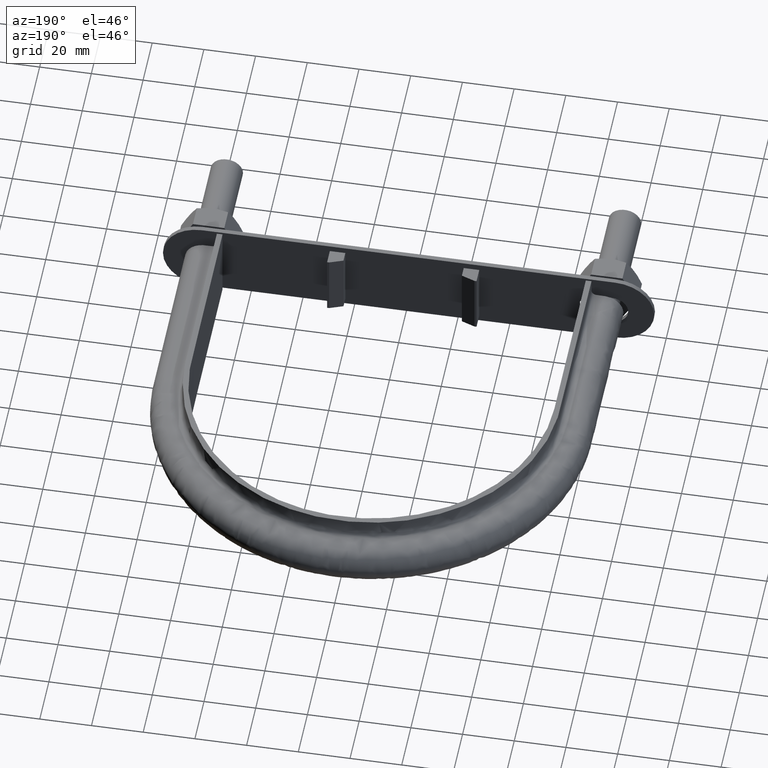
[diagram: clean part render]
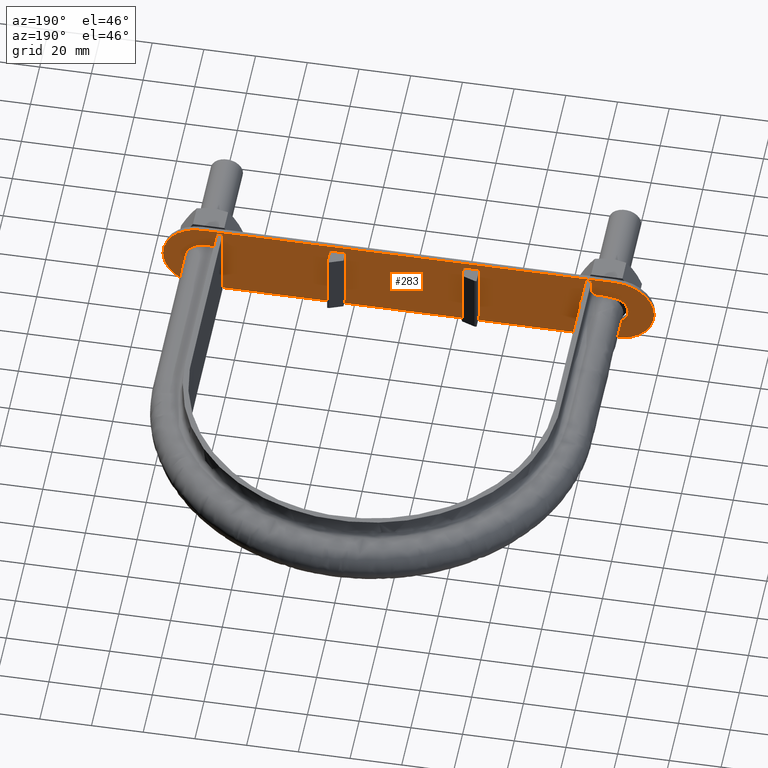
[diagram: same view with one face highlighted and labeled with its STEP entity id]
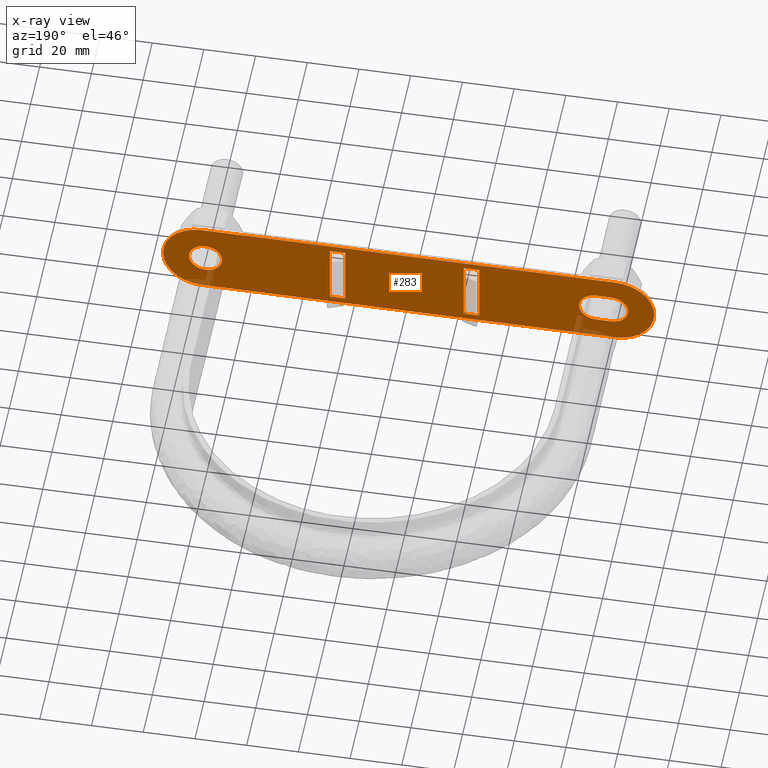
[diagram: x-ray of the same camera — body ghosted, the highlighted face saturated]
A machine part, auxiliary view. The second image highlights one B-rep face of the part: STEP entity #283.
The next image is the same camera in x-ray: the body ghosted, the highlighted face saturated — about 2% of this face is hidden behind the body in this view.
In plain terms, the highlighted planar face has unit normal (0, 1, 0).
Its self-contained STEP definition (entity closure, byte-faithful):
#283 = ADVANCED_FACE( '', ( #387, #388, #389, #390, #391 ), #392, .T. );
#387 = FACE_BOUND( '', #1420, .T. );
#388 = FACE_OUTER_BOUND( '', #1421, .T. );
#389 = FACE_BOUND( '', #1422, .T. );
#390 = FACE_BOUND( '', #1423, .T. );
#391 = FACE_BOUND( '', #1424, .T. );
#392 = PLANE( '', #1425 );
#1420 = EDGE_LOOP( '', ( #1690, #1691, #1692, #1693 ) );
#1421 = EDGE_LOOP( '', ( #1694, #1695, #1696, #1697, #1698, #1699 ) );
#1422 = EDGE_LOOP( '', ( #1700 ) );
#1423 = EDGE_LOOP( '', ( #1701, #1702, #1703, #1704 ) );
#1424 = EDGE_LOOP( '', ( #1705, #1706, #1707, #1708 ) );
#1425 = AXIS2_PLACEMENT_3D( '', #1709, #1710, #1711 );
#1690 = ORIENTED_EDGE( '', *, *, #2177, .T. );
#1691 = ORIENTED_EDGE( '', *, *, #2178, .T. );
#1692 = ORIENTED_EDGE( '', *, *, #2179, .F. );
#1693 = ORIENTED_EDGE( '', *, *, #2180, .F. );
#1694 = ORIENTED_EDGE( '', *, *, #2181, .T. );
#1695 = ORIENTED_EDGE( '', *, *, #2182, .T. );
#1696 = ORIENTED_EDGE( '', *, *, #2183, .T. );
#1697 = ORIENTED_EDGE( '', *, *, #2184, .T. );
#1698 = ORIENTED_EDGE( '', *, *, #2185, .T. );
#1699 = ORIENTED_EDGE( '', *, *, #2186, .T. );
#1700 = ORIENTED_EDGE( '', *, *, #2187, .F. );
#1701 = ORIENTED_EDGE( '', *, *, #2188, .F. );
#1702 = ORIENTED_EDGE( '', *, *, #2189, .F. );
#1703 = ORIENTED_EDGE( '', *, *, #2190, .F. );
#1704 = ORIENTED_EDGE( '', *, *, #2191, .F. );
#1705 = ORIENTED_EDGE( '', *, *, #2192, .F. );
#1706 = ORIENTED_EDGE( '', *, *, #2193, .T. );
#1707 = ORIENTED_EDGE( '', *, *, #2194, .T. );
#1708 = ORIENTED_EDGE( '', *, *, #2195, .F. );
#1709 = CARTESIAN_POINT( '', ( -81.5500000000000, 46.9100000002304, 1.37038635539817E-007 ) );
#1710 = DIRECTION( '', ( 2.82548111464310E-012, 1.00000000000000, 1.04599653137929E-013 ) );
#1711 = DIRECTION( '', ( 1.68042474379972E-009, -1.04599657885938E-013, 1.00000000000000 ) );
#2177 = EDGE_CURVE( '', #2379, #2380, #2381, .T. );
#2178 = EDGE_CURVE( '', #2380, #2382, #2383, .T. );
#2179 = EDGE_CURVE( '', #2384, #2382, #2385, .T. );
#2180 = EDGE_CURVE( '', #2379, #2384, #2386, .T. );
#2181 = EDGE_CURVE( '', #2387, #2388, #2389, .T. );
#2182 = EDGE_CURVE( '', #2388, #2390, #2391, .T. );
#2183 = EDGE_CURVE( '', #2390, #2392, #2393, .T. );
#2184 = EDGE_CURVE( '', #2392, #2394, #2395, .T. );
#2185 = EDGE_CURVE( '', #2394, #2396, #2397, .T. );
#2186 = EDGE_CURVE( '', #2396, #2387, #2398, .T. );
#2187 = EDGE_CURVE( '', #2399, #2399, #2400, .T. );
#2188 = EDGE_CURVE( '', #2401, #2402, #2403, .F. );
#2189 = EDGE_CURVE( '', #2404, #2401, #2405, .T. );
#2190 = EDGE_CURVE( '', #2406, #2404, #2407, .F. );
#2191 = EDGE_CURVE( '', #2402, #2406, #2408, .T. );
#2192 = EDGE_CURVE( '', #2409, #2410, #2411, .T. );
#2193 = EDGE_CURVE( '', #2409, #2412, #2413, .T. );
#2194 = EDGE_CURVE( '', #2412, #2414, #2415, .T. );
#2195 = EDGE_CURVE( '', #2410, #2414, #2416, .T. );
#2379 = VERTEX_POINT( '', #2869 );
#2380 = VERTEX_POINT( '', #2870 );
#2381 = LINE( '', #2871, #2872 );
#2382 = VERTEX_POINT( '', #2873 );
#2383 = LINE( '', #2874, #2875 );
#2384 = VERTEX_POINT( '', #2876 );
#2385 = LINE( '', #2877, #2878 );
#2386 = LINE( '', #2879, #2880 );
#2387 = VERTEX_POINT( '', #2881 );
#2388 = VERTEX_POINT( '', #2882 );
#2389 = CIRCLE( '', #2883, 15.0000000000000 );
#2390 = VERTEX_POINT( '', #2884 );
#2391 = LINE( '', #2885, #2886 );
#2392 = VERTEX_POINT( '', #2887 );
#2393 = CIRCLE( '', #2888, 15.0000000000000 );
#2394 = VERTEX_POINT( '', #2889 );
#2395 = CIRCLE( '', #2890, 15.0000000000000 );
#2396 = VERTEX_POINT( '', #2891 );
#2397 = LINE( '', #2892, #2893 );
#2398 = CIRCLE( '', #2894, 15.0000000000000 );
#2399 = VERTEX_POINT( '', #2895 );
#2400 = CIRCLE( '', #2896, 6.40000000000000 );
#2401 = VERTEX_POINT( '', #2897 );
#2402 = VERTEX_POINT( '', #2898 );
#2403 = CIRCLE( '', #2899, 6.50000000000000 );
#2404 = VERTEX_POINT( '', #2900 );
#2405 = LINE( '', #2901, #2902 );
#2406 = VERTEX_POINT( '', #2903 );
#2407 = CIRCLE( '', #2904, 6.50000000000000 );
#2408 = LINE( '', #2905, #2906 );
#2409 = VERTEX_POINT( '', #2907 );
#2410 = VERTEX_POINT( '', #2908 );
#2411 = LINE( '', #2909, #2910 );
#2412 = VERTEX_POINT( '', #2911 );
#2413 = LINE( '', #2912, #2913 );
#2414 = VERTEX_POINT( '', #2914 );
#2415 = LINE( '', #2915, #2916 );
#2416 = LINE( '', #2917, #2918 );
#2869 = CARTESIAN_POINT( '', ( -28.9000000210053, 46.9100000000830, -12.4999999514357 ) );
#2870 = CARTESIAN_POINT( '', ( -22.9000000210053, 46.9100000000660, -12.4999999615183 ) );
#2871 = CARTESIAN_POINT( '', ( -28.9000000210053, 46.9100000000830, -12.4999999514357 ) );
#2872 = VECTOR( '', #3349, 1000.00000000000 );
#2873 = CARTESIAN_POINT( '', ( -22.8999999789947, 46.9100000000634, 12.5000000384817 ) );
#2874 = CARTESIAN_POINT( '', ( -22.9000000210053, 46.9100000000660, -12.4999999615183 ) );
#2875 = VECTOR( '', #3350, 1000.00000000000 );
#2876 = CARTESIAN_POINT( '', ( -28.8999999789947, 46.9100000000804, 12.5000000485643 ) );
#2877 = CARTESIAN_POINT( '', ( -28.8999999789947, 46.9100000000804, 12.5000000485643 ) );
#2878 = VECTOR( '', #3351, 1000.00000000000 );
#2879 = CARTESIAN_POINT( '', ( -28.9000000210053, 46.9100000000830, -12.4999999514357 ) );
#2880 = VECTOR( '', #3352, 1000.00000000000 );
#2881 = CARTESIAN_POINT( '', ( -96.5500000000000, 46.9100000002728, 1.62245018839877E-007 ) );
#2882 = CARTESIAN_POINT( '', ( -81.5499999747936, 46.9100000002289, 15.0000001370386 ) );
#2883 = AXIS2_PLACEMENT_3D( '', #3353, #3354, #3355 );
#2884 = CARTESIAN_POINT( '', ( 78.4500000252064, 46.9099999997768, 14.9999998681707 ) );
#2885 = CARTESIAN_POINT( '', ( -81.5499999747936, 46.9100000002289, 15.0000001370386 ) );
#2886 = VECTOR( '', #3356, 1000.00000000000 );
#2887 = CARTESIAN_POINT( '', ( 93.4500000000000, 46.9099999997360, -1.57035692890411E-007 ) );
#2888 = AXIS2_PLACEMENT_3D( '', #3357, #3358, #3359 );
#2889 = CARTESIAN_POINT( '', ( 78.4499999747936, 46.9099999997799, -15.0000001318293 ) );
#2890 = AXIS2_PLACEMENT_3D( '', #3360, #3361, #3362 );
#2891 = CARTESIAN_POINT( '', ( -81.5500000252064, 46.9100000002320, -14.9999998629613 ) );
#2892 = CARTESIAN_POINT( '', ( 78.4499999747936, 46.9099999997799, -15.0000001318293 ) );
#2893 = VECTOR( '', #3363, 1000.00000000000 );
#2894 = AXIS2_PLACEMENT_3D( '', #3364, #3365, #3366 );
#2895 = CARTESIAN_POINT( '', ( 83.4000000000000, 46.9100099997644, -1.40147425948901E-007 ) );
#2896 = AXIS2_PLACEMENT_3D( '', #3367, #3368, #3369 );
#2897 = CARTESIAN_POINT( '', ( -80.0000000109228, 46.9100000002267, -6.49999986556602 ) );
#2898 = CARTESIAN_POINT( '', ( -79.9999999890772, 46.9100000002254, 6.50000013443397 ) );
#2899 = AXIS2_PLACEMENT_3D( '', #3370, #3371, #3372 );
#2900 = CARTESIAN_POINT( '', ( -74.0000000109228, 46.9100000002098, -6.49999987564857 ) );
#2901 = CARTESIAN_POINT( '', ( -80.0000000109228, 46.9100000002267, -6.49999986556602 ) );
#2902 = VECTOR( '', #3373, 1000.00000000000 );
#2903 = CARTESIAN_POINT( '', ( -73.9999999890772, 46.9100000002084, 6.50000012435143 ) );
#2904 = AXIS2_PLACEMENT_3D( '', #3374, #3375, #3376 );
#2905 = CARTESIAN_POINT( '', ( -73.9999999890772, 46.9100000002084, 6.50000012435143 ) );
#2906 = VECTOR( '', #3377, 1000.00000000000 );
#2907 = CARTESIAN_POINT( '', ( 22.8999999789947, 46.9099999999366, -12.5000000384817 ) );
#2908 = CARTESIAN_POINT( '', ( 22.9000000210053, 46.9099999999340, 12.4999999615183 ) );
#2909 = CARTESIAN_POINT( '', ( 22.8999999789947, 46.9099999999366, -12.5000000384817 ) );
#2910 = VECTOR( '', #3378, 1000.00000000000 );
#2911 = CARTESIAN_POINT( '', ( 28.8999999789947, 46.9099999999197, -12.5000000485643 ) );
#2912 = CARTESIAN_POINT( '', ( 22.8999999789947, 46.9099999999366, -12.5000000384817 ) );
#2913 = VECTOR( '', #3379, 1000.00000000000 );
#2914 = CARTESIAN_POINT( '', ( 28.9000000210053, 46.9099999999171, 12.4999999514357 ) );
#2915 = CARTESIAN_POINT( '', ( 28.8999999789947, 46.9099999999197, -12.5000000485643 ) );
#2916 = VECTOR( '', #3380, 1000.00000000000 );
#2917 = CARTESIAN_POINT( '', ( 22.9000000210053, 46.9099999999340, 12.4999999615183 ) );
#2918 = VECTOR( '', #3381, 1000.00000000000 );
#3349 = DIRECTION( '', ( 1.00000000000000, -2.82548111446733E-012, -1.68042474379972E-009 ) );
#3350 = DIRECTION( '', ( 1.68042479689072E-009, -1.04264346303651E-013, 1.00000000000000 ) );
#3351 = DIRECTION( '', ( 1.00000000000000, -2.82548111446733E-012, -1.68042474379972E-009 ) );
#3352 = DIRECTION( '', ( 1.68042479689072E-009, -1.04264346303651E-013, 1.00000000000000 ) );
#3353 = CARTESIAN_POINT( '', ( -81.5500000000000, 46.9100000002304, 1.37038635539817E-007 ) );
#3354 = DIRECTION( '', ( 2.82548111464310E-012, 1.00000000000000, 1.04599653137929E-013 ) );
#3355 = DIRECTION( '', ( -1.00000000000000, 2.82548111446733E-012, 1.68042462815149E-009 ) );
#3356 = DIRECTION( '', ( 1.00000000000000, -2.82548111446733E-012, -1.68042474379972E-009 ) );
#3357 = CARTESIAN_POINT( '', ( 78.4500000000000, 46.9099999997784, -1.31829323468139E-007 ) );
#3358 = DIRECTION( '', ( 2.82548111464310E-012, 1.00000000000000, 1.04599653137929E-013 ) );
#3359 = DIRECTION( '', ( 1.68042474379972E-009, -1.04599657885938E-013, 1.00000000000000 ) );
#3360 = CARTESIAN_POINT( '', ( 78.4500000000000, 46.9099999997784, -1.31829309590351E-007 ) );
#3361 = DIRECTION( '', ( 2.82548111464310E-012, 1.00000000000000, 1.04599653137929E-013 ) );
#3362 = DIRECTION( '', ( 1.00000000000000, -2.82548111446733E-012, -1.68042462815149E-009 ) );
#3363 = DIRECTION( '', ( -1.00000000000000, 2.82548111446733E-012, 1.68042474379972E-009 ) );
#3364 = CARTESIAN_POINT( '', ( -81.5500000000000, 46.9100000002304, 1.37038649417605E-007 ) );
#3365 = DIRECTION( '', ( 2.82548111464310E-012, 1.00000000000000, 1.04599653137929E-013 ) );
#3366 = DIRECTION( '', ( -1.68042474379972E-009, 1.04599657885938E-013, -1.00000000000000 ) );
#3367 = CARTESIAN_POINT( '', ( 77.0000000000000, 46.9100099997825, -1.29392707588583E-007 ) );
#3368 = DIRECTION( '', ( 2.82548111464310E-012, 1.00000000000000, 1.04599653137929E-013 ) );
#3369 = DIRECTION( '', ( 1.00000000000000, -2.82548111446733E-012, -1.68042474379972E-009 ) );
#3370 = CARTESIAN_POINT( '', ( -80.0000000000000, 46.9100000002261, 1.34433975452204E-007 ) );
#3371 = DIRECTION( '', ( -2.82548111464310E-012, -1.00000000000000, -1.04599653137929E-013 ) );
#3372 = DIRECTION( '', ( -1.00000000000000, 2.82548111446733E-012, 1.68042474379972E-009 ) );
#3373 = DIRECTION( '', ( -1.00000000000000, 2.82548111446733E-012, 1.68042474379972E-009 ) );
#3374 = CARTESIAN_POINT( '', ( -74.0000000000000, 46.9100000002091, 1.24351426989405E-007 ) );
#3375 = DIRECTION( '', ( -2.82548111464310E-012, -1.00000000000000, -1.04599653137929E-013 ) );
#3376 = DIRECTION( '', ( -1.00000000000000, 2.82548111446733E-012, 1.68042474379972E-009 ) );
#3377 = DIRECTION( '', ( 1.00000000000000, -2.82548111446733E-012, -1.68042474379972E-009 ) );
#3378 = DIRECTION( '', ( 1.68042479689072E-009, -1.04264346303651E-013, 1.00000000000000 ) );
#3379 = DIRECTION( '', ( 1.00000000000000, -2.82548111446733E-012, -1.68042474379972E-009 ) );
#3380 = DIRECTION( '', ( 1.68042479689072E-009, -1.04264346303651E-013, 1.00000000000000 ) );
#3381 = DIRECTION( '', ( 1.00000000000000, -2.82548111446733E-012, -1.68042474379972E-009 ) );